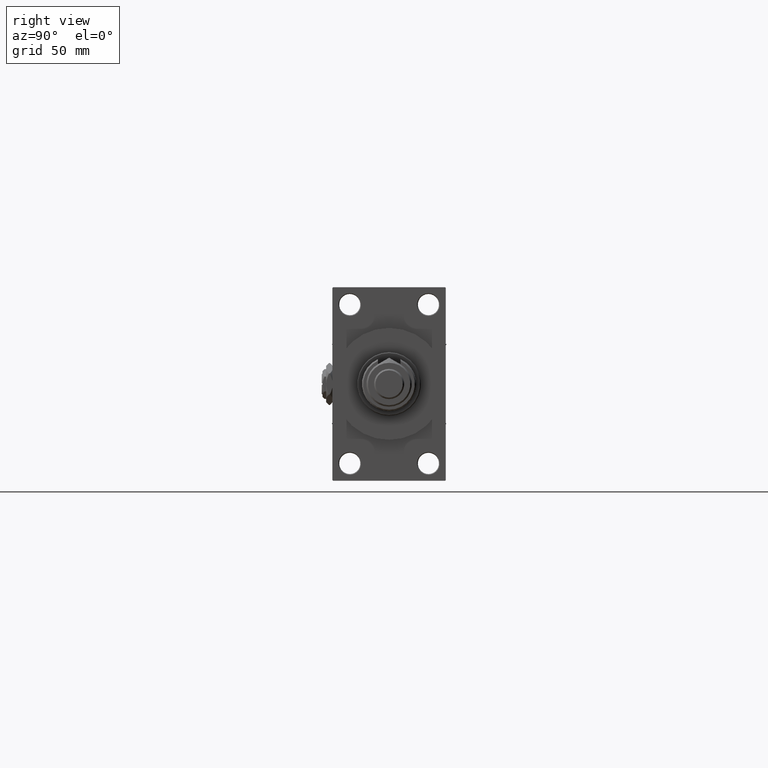
[diagram: clean part render]
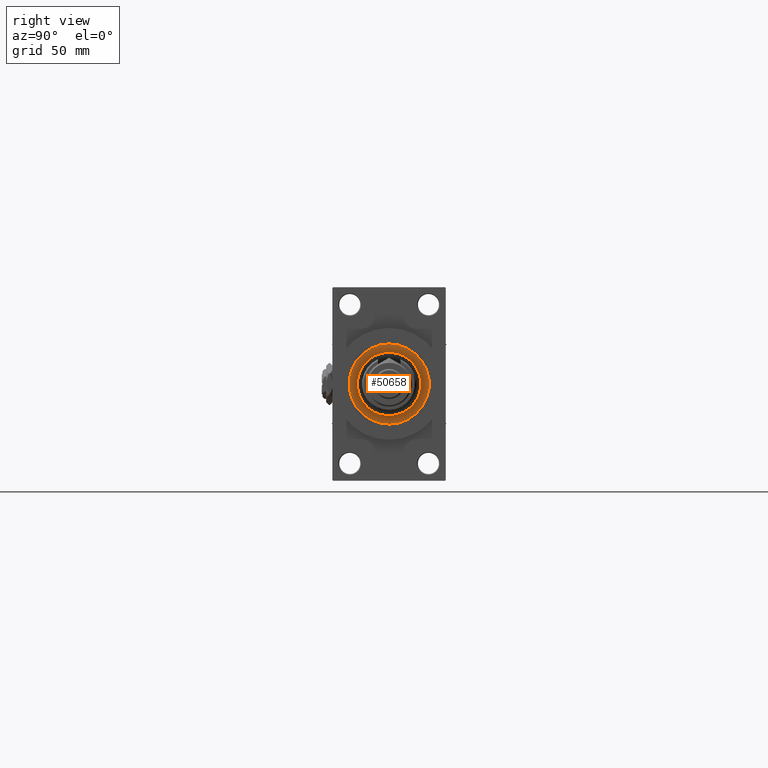
[diagram: same view with one face highlighted and labeled with its STEP entity id]
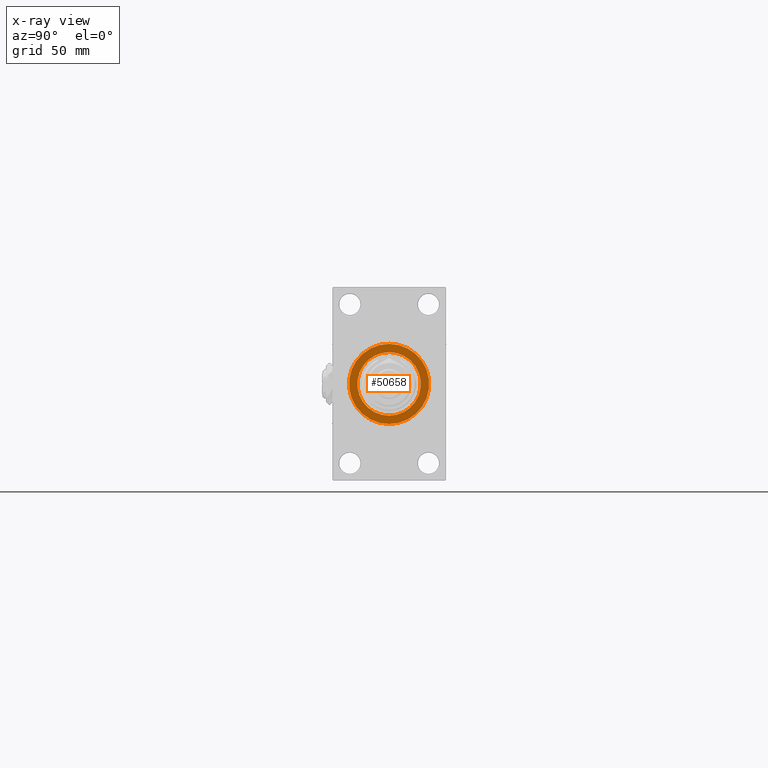
[diagram: x-ray of the same camera — body ghosted, the highlighted face saturated]
A machine part, right view. The second image highlights one B-rep face of the part: STEP entity #50658.
The next image is the same camera in x-ray: the body ghosted, the highlighted face saturated — about 0% of this face is hidden behind the body in this view.
In plain terms, the highlighted planar face has unit normal (1, -0, -0).
Its self-contained STEP definition (entity closure, byte-faithful):
#184 = VERTEX_POINT ( 'NONE', #51414 ) ;
#2006 = PLANE ( 'NONE',  #2535 ) ;
#2302 = DIRECTION ( 'NONE',  ( 1.000000000000000000, 0.000000000000000000, 0.000000000000000000 ) ) ;
#2435 = AXIS2_PLACEMENT_3D ( 'NONE', #49804, #25271, #30020 ) ;
#2535 = AXIS2_PLACEMENT_3D ( 'NONE', #34635, #42315, #37820 ) ;
#3184 = DIRECTION ( 'NONE',  ( 1.000000000000000000, 0.000000000000000000, 0.000000000000000000 ) ) ;
#5015 = ORIENTED_EDGE ( 'NONE', *, *, #43409, .F. ) ;
#5088 = AXIS2_PLACEMENT_3D ( 'NONE', #19362, #7264, #28051 ) ;
#6098 = EDGE_CURVE ( 'NONE', #44405, #27846, #45821, .T. ) ;
#7264 = DIRECTION ( 'NONE',  ( 0.000000000000000000, 0.000000000000000000, 1.000000000000000000 ) ) ;
#8651 = EDGE_LOOP ( 'NONE', ( #36857, #28976 ) ) ;
#8893 = CARTESIAN_POINT ( 'NONE',  ( -26.50000000000000355, 0.000000000000000000, 43.25999999999999801 ) ) ;
#13115 = EDGE_LOOP ( 'NONE', ( #21983, #5015 ) ) ;
#15843 = CIRCLE ( 'NONE', #2435, 21.00000000000000000 ) ;
#18348 = DIRECTION ( 'NONE',  ( 0.000000000000000000, 0.000000000000000000, 1.000000000000000000 ) ) ;
#18755 = EDGE_CURVE ( 'NONE', #27846, #44405, #26107, .T. ) ;
#19362 = CARTESIAN_POINT ( 'NONE',  ( 0.000000000000000000, 0.000000000000000000, 43.25999999999999801 ) ) ;
#21162 = CIRCLE ( 'NONE', #28763, 21.00000000000000000 ) ;
#21752 = FACE_BOUND ( 'NONE', #13115, .T. ) ;
#21983 = ORIENTED_EDGE ( 'NONE', *, *, #25559, .F. ) ;
#25271 = DIRECTION ( 'NONE',  ( 0.000000000000000000, 0.000000000000000000, 1.000000000000000000 ) ) ;
#25559 = EDGE_CURVE ( 'NONE', #26307, #184, #21162, .T. ) ;
#26107 = CIRCLE ( 'NONE', #5088, 26.50000000000000355 ) ;
#26307 = VERTEX_POINT ( 'NONE', #50539 ) ;
#27672 = DIRECTION ( 'NONE',  ( 0.000000000000000000, 0.000000000000000000, 1.000000000000000000 ) ) ;
#27846 = VERTEX_POINT ( 'NONE', #36267 ) ;
#28051 = DIRECTION ( 'NONE',  ( 1.000000000000000000, 0.000000000000000000, 0.000000000000000000 ) ) ;
#28763 = AXIS2_PLACEMENT_3D ( 'NONE', #42875, #18348, #2302 ) ;
#28976 = ORIENTED_EDGE ( 'NONE', *, *, #18755, .T. ) ;
#30020 = DIRECTION ( 'NONE',  ( 1.000000000000000000, 0.000000000000000000, 0.000000000000000000 ) ) ;
#34635 = CARTESIAN_POINT ( 'NONE',  ( 0.000000000000000000, 0.000000000000000000, 43.25999999999999801 ) ) ;
#36267 = CARTESIAN_POINT ( 'NONE',  ( 26.50000000000000355, 3.245314017740486554E-15, 43.25999999999999801 ) ) ;
#36857 = ORIENTED_EDGE ( 'NONE', *, *, #6098, .T. ) ;
#37820 = DIRECTION ( 'NONE',  ( 1.000000000000000000, 0.000000000000000000, -0.000000000000000000 ) ) ;
#38083 = FACE_OUTER_BOUND ( 'NONE', #8651, .T. ) ;
#42315 = DIRECTION ( 'NONE',  ( 0.000000000000000000, 0.000000000000000000, 1.000000000000000000 ) ) ;
#42875 = CARTESIAN_POINT ( 'NONE',  ( 0.000000000000000000, 0.000000000000000000, 43.25999999999999801 ) ) ;
#43409 = EDGE_CURVE ( 'NONE', #184, #26307, #15843, .T. ) ;
#43509 = CARTESIAN_POINT ( 'NONE',  ( 0.000000000000000000, 0.000000000000000000, 43.25999999999999801 ) ) ;
#44405 = VERTEX_POINT ( 'NONE', #8893 ) ;
#45821 = CIRCLE ( 'NONE', #46684, 26.50000000000000355 ) ;
#46684 = AXIS2_PLACEMENT_3D ( 'NONE', #43509, #27672, #3184 ) ;
#49804 = CARTESIAN_POINT ( 'NONE',  ( 0.000000000000000000, 0.000000000000000000, 43.25999999999999801 ) ) ;
#50539 = CARTESIAN_POINT ( 'NONE',  ( -21.00000000000000000, 0.000000000000000000, 43.25999999999999801 ) ) ;
#50658 = ADVANCED_FACE ( 'NONE', ( #21752, #38083 ), #2006, .T. ) ;
#51414 = CARTESIAN_POINT ( 'NONE',  ( 21.00000000000000000, 2.571758278209441661E-15, 43.25999999999999801 ) ) ;